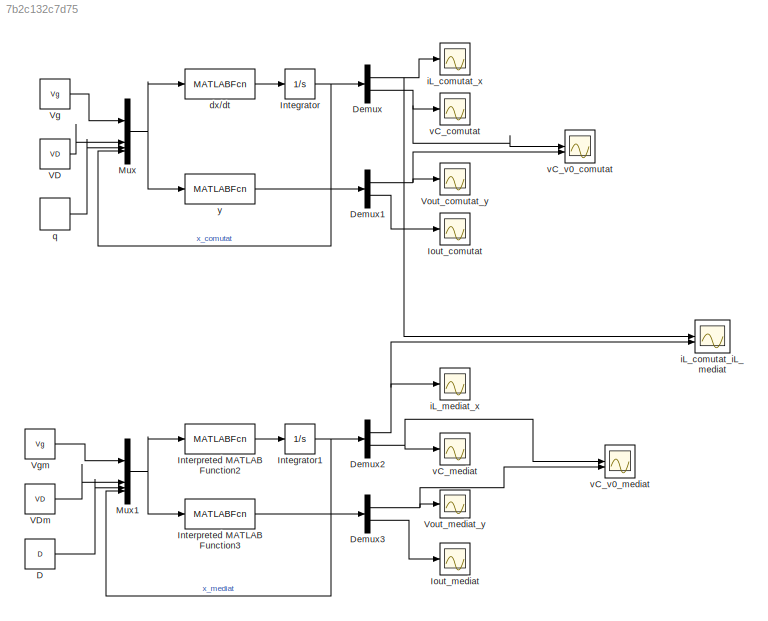
MODEL slx_7b2c132c7d75
KIND model
CONFIG AbsTol = auto
CONFIG EnableMultiTasking = off
CONFIG FixedStep = Ts/10000
CONFIG MaxStep = auto
CONFIG MinStep = auto
CONFIG RelTol = 1e-3
CONFIG SampleTimeConstraint = Unconstrained
CONFIG SolverName = ode45
CONFIG StartTime = 0.0
CONFIG StopTime = 2
BLOCK [Constant] D
  Value = D
BLOCK [Demux] Demux
  Outputs = 2
BLOCK [Demux] Demux1
  Outputs = 2
BLOCK [Demux] Demux2
  Outputs = 2
BLOCK [Demux] Demux3
  Outputs = 2
BLOCK [Integrator] Integrator
  InitialCondition = X0
BLOCK [Integrator] Integrator1
  InitialCondition = X0
BLOCK [MATLABFcn] Interpreted MATLAB Function2
  MATLABFcn = (u(3)*A1+(1-u(3))*A2)*[u(4); u(5)]+(u(3)*B1+(1-u(3))*B2)*[u(1);u(2)]
  OutputDimensions = 2
BLOCK [MATLABFcn] Interpreted MATLAB Function3
  MATLABFcn = (u(3)*E1+(1-u(3))*E2)*[u(4); u(5)]+(u(3)*F1+(1-u(3))*F2)*[u(1);u(2)]
  OutputDimensions = 2
BLOCK [Scope] Iout_comutat
  Floating = off
  NumInputPorts = 1
  ScopeSpecificationString = Simulink.scopes.TimeScopeBlockCfg('CurrentConfiguration', extmgr.ConfigurationSet(extmgr.Configuration('Core','General UI',true),extmgr.Configuration('Core','Source UI',true),extmgr.Configuration('Sources','WiredSimulink',true,'DataLoggingVariableName','ScopeData11'),extmgr.Configuration('Visuals','Time Domain',true,'SerializedDisplays',{struct('MinYLimReal','1.98756','MaxYLimReal','2.01281','YLab...<+1471ch>
BLOCK [Scope] Iout_mediat
  Floating = off
  NumInputPorts = 1
  ScopeSpecificationString = Simulink.scopes.TimeScopeBlockCfg('CurrentConfiguration', extmgr.ConfigurationSet(extmgr.Configuration('Core','General UI',true),extmgr.Configuration('Sources','WiredSimulink',true,'DataLoggingVariableName','ScopeData13'),extmgr.Configuration('Visuals','Time Domain',true,'SerializedDisplays',{struct('MinYLimReal','19.1633','MaxYLimReal','19.1633','YLabelReal','','MinYLimMag','19.1633','MaxYLimMag'...<+1374ch>
BLOCK [Mux] Mux
  DisplayOption = bar
BLOCK [Mux] Mux1
  DisplayOption = bar
BLOCK [Constant] VD
  Value = VD
BLOCK [Constant] VDm
  Value = VD
BLOCK [Constant] Vg
  Value = Vg
BLOCK [Constant] Vgm
  Value = Vg
BLOCK [Scope] Vout_comutat_y
  Floating = off
  NumInputPorts = 1
  ScopeSpecificationString = Simulink.scopes.TimeScopeBlockCfg('CurrentConfiguration', extmgr.ConfigurationSet(extmgr.Configuration('Core','General UI',true),extmgr.Configuration('Core','Source UI',true),extmgr.Configuration('Sources','WiredSimulink',true,'DataLoggingVariableName','ScopeData3'),extmgr.Configuration('Visuals','Time Domain',true,'SerializedDisplays',{struct('MinYLimReal','23.8507','MaxYLimReal','24.15366','YLab...<+1474ch>
BLOCK [Scope] Vout_mediat_y
  Floating = off
  NumInputPorts = 1
  ScopeSpecificationString = Simulink.scopes.TimeScopeBlockCfg('CurrentConfiguration', extmgr.ConfigurationSet(extmgr.Configuration('Core','General UI',true),extmgr.Configuration('Sources','WiredSimulink',true,'DataLoggingVariableName','ScopeData7'),extmgr.Configuration('Visuals','Time Domain',true,'SerializedDisplays',{struct('MinYLimReal','2.3954','MaxYLimReal','2.3954','YLabelReal','','MinYLimMag','2.3954','MaxYLimMag','2....<+1369ch>
BLOCK [MATLABFcn] dx//dt
  MATLABFcn = (u(3)*A1+(1-u(3))*A2)*[u(4); u(5)]+(u(3)*B1+(1-u(3))*B2)*[u(1);u(2)]
  OutputDimensions = 2
BLOCK [Scope] iL_comutat_iL_mediat
  Floating = off
  NumInputPorts = 2
  ScopeSpecificationString = Simulink.scopes.TimeScopeBlockCfg('CurrentConfiguration', extmgr.ConfigurationSet(extmgr.Configuration('Core','General UI',true),extmgr.Configuration('Core','Source UI',true),extmgr.Configuration('Sources','WiredSimulink',true,'DataLoggingVariableName','ScopeData1'),extmgr.Configuration('Visuals','Time Domain',true,'SerializedDisplays',{struct('MinYLimReal','21.04576','MaxYLimReal','21.16425','YLa...<+1625ch>
BLOCK [Scope] iL_comutat_x
  Floating = off
  NumInputPorts = 1
  ScopeSpecificationString = Simulink.scopes.TimeScopeBlockCfg('CurrentConfiguration', extmgr.ConfigurationSet(extmgr.Configuration('Core','General UI',true),extmgr.Configuration('Core','Source UI',true),extmgr.Configuration('Sources','WiredSimulink',true,'DataLoggingVariableName','ScopeData2'),extmgr.Configuration('Visuals','Time Domain',true,'SerializedDisplays',{struct('MinYLimReal','21.03939','MaxYLimReal','21.2315','YLab...<+1640ch>
BLOCK [Scope] iL_mediat_x
  Floating = off
  NumInputPorts = 1
  ScopeSpecificationString = Simulink.scopes.TimeScopeBlockCfg('CurrentConfiguration', extmgr.ConfigurationSet(extmgr.Configuration('Core','General UI',true),extmgr.Configuration('Core','Source UI',true),extmgr.Configuration('Sources','WiredSimulink',true,'DataLoggingVariableName','ScopeData6'),extmgr.Configuration('Visuals','Time Domain',true,'SerializedDisplays',{struct('MinYLimReal','11.10699','MaxYLimReal','31.10699','YLa...<+1596ch>
BLOCK [DiscretePulseGenerator] q
  Period = Ts
  PulseType = Time based
  PulseWidth = D*100
BLOCK [Scope] vC_comutat
  Floating = off
  NumInputPorts = 1
  ScopeSpecificationString = Simulink.scopes.TimeScopeBlockCfg('CurrentConfiguration', extmgr.ConfigurationSet(extmgr.Configuration('Core','General UI',true),extmgr.Configuration('Core','Source UI',true),extmgr.Configuration('Sources','WiredSimulink',true,'DataLoggingVariableName','ScopeData14'),extmgr.Configuration('Visuals','Time Domain',true,'SerializedDisplays',{struct('MinYLimReal','23.8507','MaxYLimReal','24.15366','YLa...<+1507ch>
BLOCK [Scope] vC_mediat
  Floating = off
  NumInputPorts = 1
  ScopeSpecificationString = Simulink.scopes.TimeScopeBlockCfg('CurrentConfiguration', extmgr.ConfigurationSet(extmgr.Configuration('Core','General UI',true),extmgr.Configuration('Core','Source UI',true),extmgr.Configuration('Sources','WiredSimulink',true,'DataLoggingVariableName','ScopeData15'),extmgr.Configuration('Visuals','Time Domain',true,'SerializedDisplays',{struct('MinYLimReal','13.99976','MaxYLimReal','33.99976','YL...<+1537ch>
BLOCK [Scope] vC_v0_comutat
  Floating = off
  NumInputPorts = 2
  ScopeSpecificationString = Simulink.scopes.TimeScopeBlockCfg('CurrentConfiguration', extmgr.ConfigurationSet(extmgr.Configuration('Core','General UI',true),extmgr.Configuration('Core','Source UI',true),extmgr.Configuration('Sources','WiredSimulink',true,'DataLoggingVariableName','ScopeData16'),extmgr.Configuration('Visuals','Time Domain',true,'SerializedDisplays',{struct('MinYLimReal','23.8592','MaxYLimReal','24.13967','YLa...<+1622ch>
BLOCK [Scope] vC_v0_mediat
  Floating = off
  NumInputPorts = 2
  ScopeSpecificationString = Simulink.scopes.TimeScopeBlockCfg('CurrentConfiguration', extmgr.ConfigurationSet(extmgr.Configuration('Core','General UI',true),extmgr.Configuration('Core','Source UI',true),extmgr.Configuration('Sources','WiredSimulink',true),extmgr.Configuration('Visuals','Time Domain',true,'SerializedDisplays',{struct('MinYLimReal','-3.1178','MaxYLimReal','28.0599','YLabelReal','','MinYLimMag','0','MaxYLimMag'...<+1479ch>
BLOCK [MATLABFcn] y
  MATLABFcn = (u(3)*E1+(1-u(3))*E2)*[u(4); u(5)]+(u(3)*F1+(1-u(3))*F2)*[u(1);u(2)]
  OutputDimensions = 2
LINE D:1 -> Mux1:3
NET Demux1:1 -> Vout_comutat_y:1, vC_v0_comutat:2
LINE Demux1:2 -> Iout_comutat:1
NET Demux2:1 -> iL_comutat_iL_mediat:2, iL_mediat_x:1
NET Demux2:2 -> vC_mediat:1, vC_v0_mediat:1
NET Demux3:1 -> Vout_mediat_y:1, vC_v0_mediat:2
LINE Demux3:2 -> Iout_mediat:1
NET Demux:1 -> iL_comutat_iL_mediat:1, iL_comutat_x:1
NET Demux:2 -> vC_comutat:1, vC_v0_comutat:1
NET Integrator1:1 -> Demux2:1, Mux1:4
NET Integrator:1 -> Demux:1, Mux:4
LINE Interpreted MATLAB Function2:1 -> Integrator1:1
LINE Interpreted MATLAB Function3:1 -> Demux3:1
NET Mux1:1 -> Interpreted MATLAB Function2:1, Interpreted MATLAB Function3:1
NET Mux:1 -> dx//dt:1, y:1
LINE VD:1 -> Mux:2
LINE VDm:1 -> Mux1:2
LINE Vg:1 -> Mux:1
LINE Vgm:1 -> Mux1:1
LINE dx//dt:1 -> Integrator:1
LINE q:1 -> Mux:3
LINE y:1 -> Demux1:1
note: NET lines group one-source signal fan-out (src -> all destinations, sorted); 1:1 wires keep LINE
